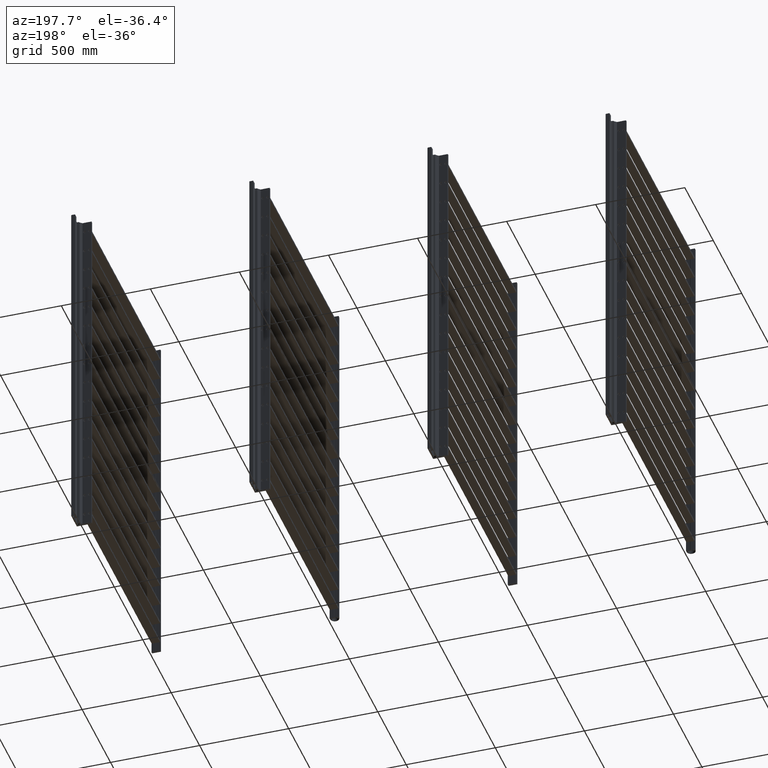
[diagram: clean part render]
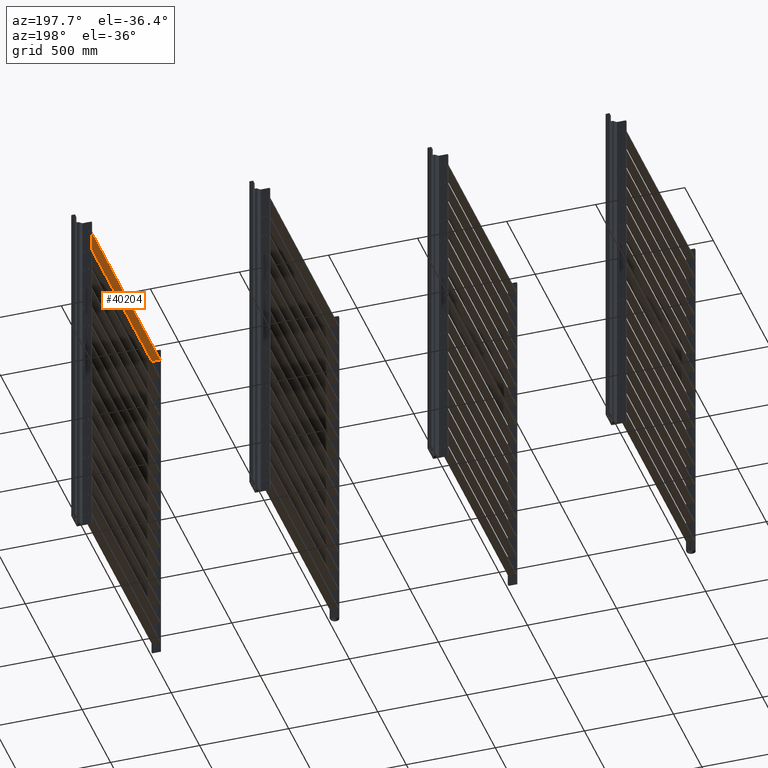
[diagram: same view with one face highlighted and labeled with its STEP entity id]
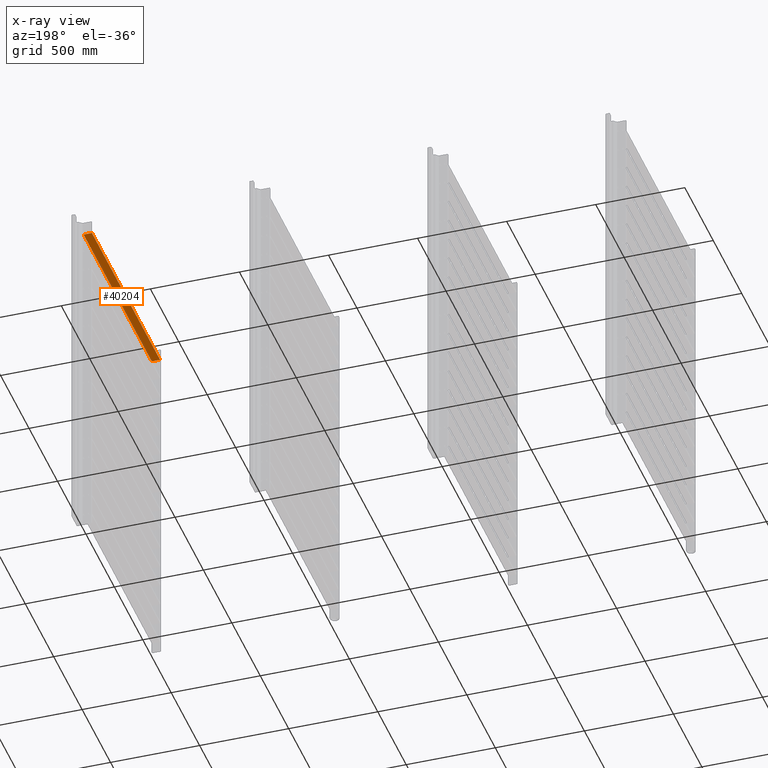
[diagram: x-ray of the same camera — body ghosted, the highlighted face saturated]
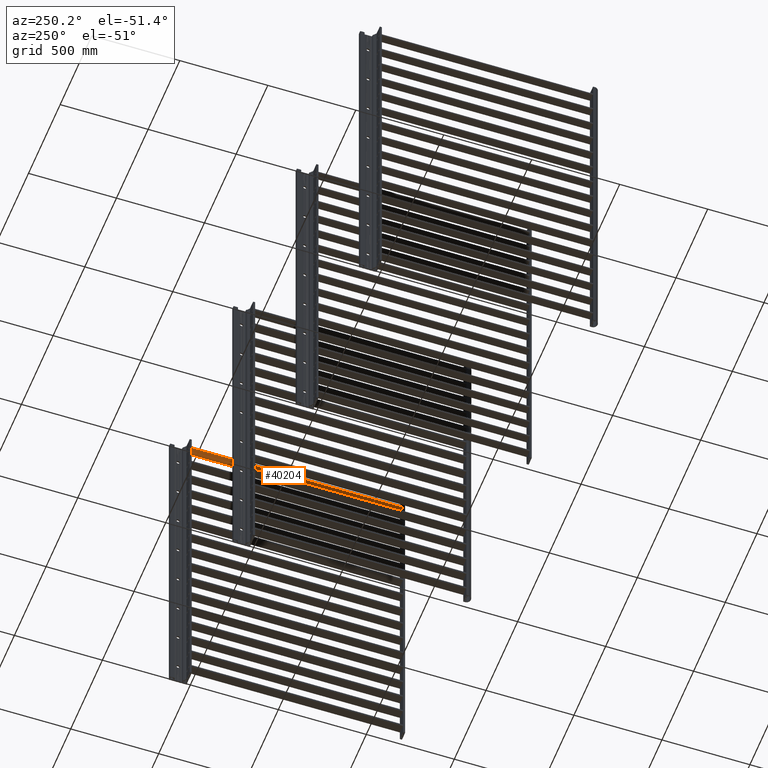
[diagram: same view with one face highlighted and labeled with its STEP entity id]
A machine part, auxiliary view. The second image highlights one B-rep face of the part: STEP entity #40204.
The next image is the same camera in x-ray: the body ghosted, the highlighted face saturated — about 0% of this face is hidden behind the body in this view.
A second angle (auxiliary view) of the same face is appended — the face is thin or edge-on in the first view.
In plain terms, the highlighted planar face has unit normal (-0, 0, -1).
Its self-contained STEP definition (entity closure, byte-faithful):
#1284=PLANE('',#44115);
#3801=LINE('',#76290,#6750);
#3814=LINE('',#76329,#6763);
#3815=LINE('',#76331,#6764);
#3816=LINE('',#76332,#6765);
#6750=VECTOR('',#54307,10.);
#6763=VECTOR('',#54346,10.);
#6764=VECTOR('',#54349,10.);
#6765=VECTOR('',#54350,10.);
#10084=FACE_OUTER_BOUND('',#12273,.T.);
#12273=EDGE_LOOP('',(#34870,#34871,#34872,#34873));
#18090=VERTEX_POINT('',#76287);
#18091=VERTEX_POINT('',#76289);
#18103=VERTEX_POINT('',#76325);
#18104=VERTEX_POINT('',#76327);
#23846=EDGE_CURVE('',#18090,#18091,#3801,.T.);
#23866=EDGE_CURVE('',#18103,#18104,#3814,.T.);
#23867=EDGE_CURVE('',#18090,#18103,#3815,.T.);
#23868=EDGE_CURVE('',#18091,#18104,#3816,.T.);
#34870=ORIENTED_EDGE('',*,*,#23867,.T.);
#34871=ORIENTED_EDGE('',*,*,#23866,.T.);
#34872=ORIENTED_EDGE('',*,*,#23868,.F.);
#34873=ORIENTED_EDGE('',*,*,#23846,.F.);
#40204=ADVANCED_FACE('',(#10084),#1284,.T.);
#44115=AXIS2_PLACEMENT_3D('',#76330,#54347,#54348);
#54307=DIRECTION('',(0.,0.,1.));
#54346=DIRECTION('',(0.,0.,1.));
#54347=DIRECTION('center_axis',(0.,1.,0.));
#54348=DIRECTION('ref_axis',(-1.,0.,0.));
#54349=DIRECTION('',(-1.,0.,0.));
#54350=DIRECTION('',(-1.,0.,0.));
#76287=CARTESIAN_POINT('',(48.0057648647144,12.4386954143283,0.));
#76289=CARTESIAN_POINT('',(48.0057648647144,12.4386954143283,1200.));
#76290=CARTESIAN_POINT('',(48.0057648647144,12.4386954143283,0.));
#76325=CARTESIAN_POINT('',(1.00576486471437,12.4386954143283,0.));
#76327=CARTESIAN_POINT('',(1.00576486471437,12.4386954143283,1200.));
#76329=CARTESIAN_POINT('',(1.00576486471437,12.4386954143283,0.));
#76330=CARTESIAN_POINT('Origin',(48.0057648647144,12.4386954143283,0.));
#76331=CARTESIAN_POINT('',(48.0057648647144,12.4386954143283,0.));
#76332=CARTESIAN_POINT('',(48.0057648647144,12.4386954143283,1200.));